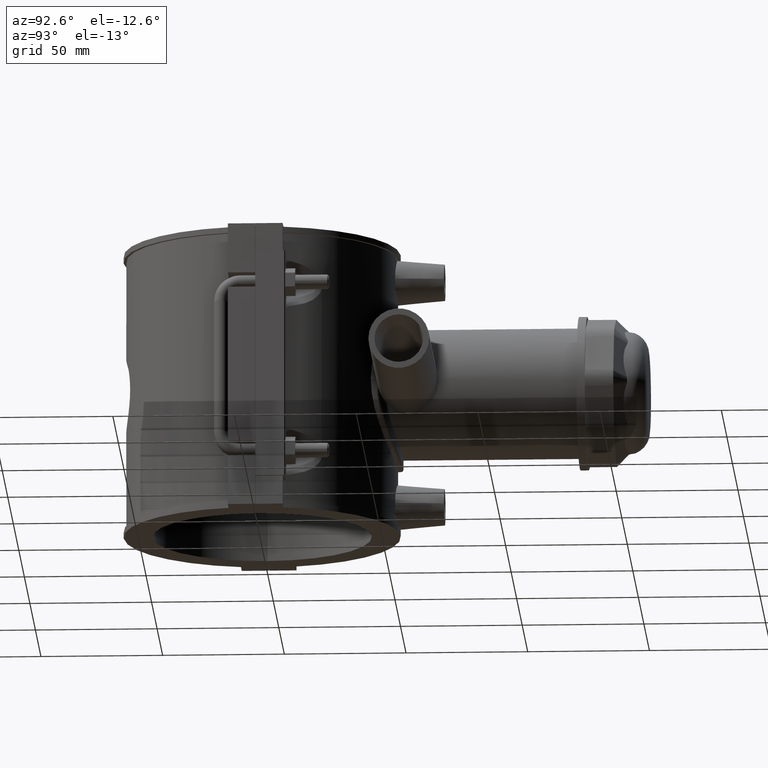
[diagram: clean part render]
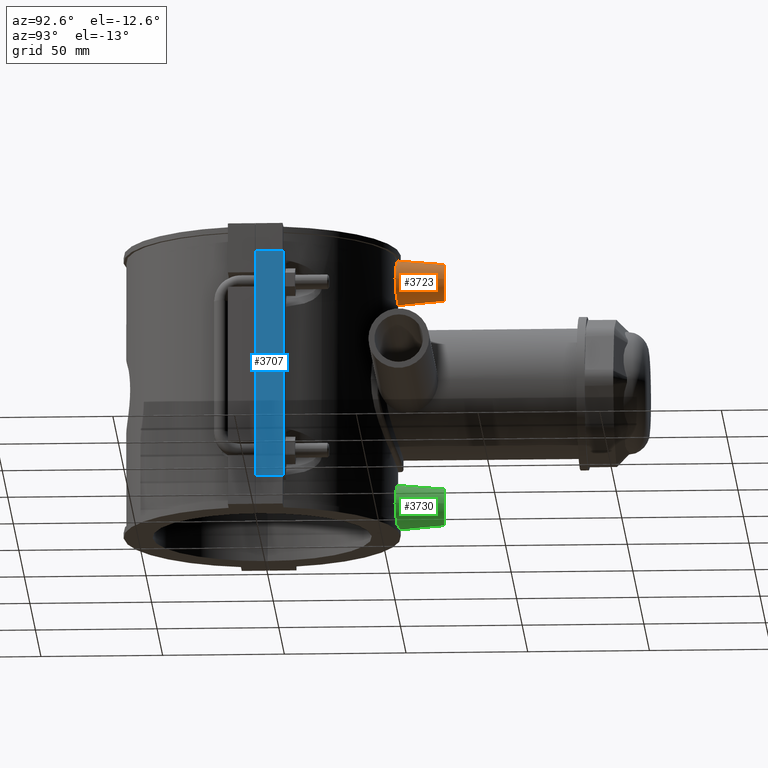
[diagram: same view with three faces highlighted in distinct colors, each labeled with its STEP entity id]
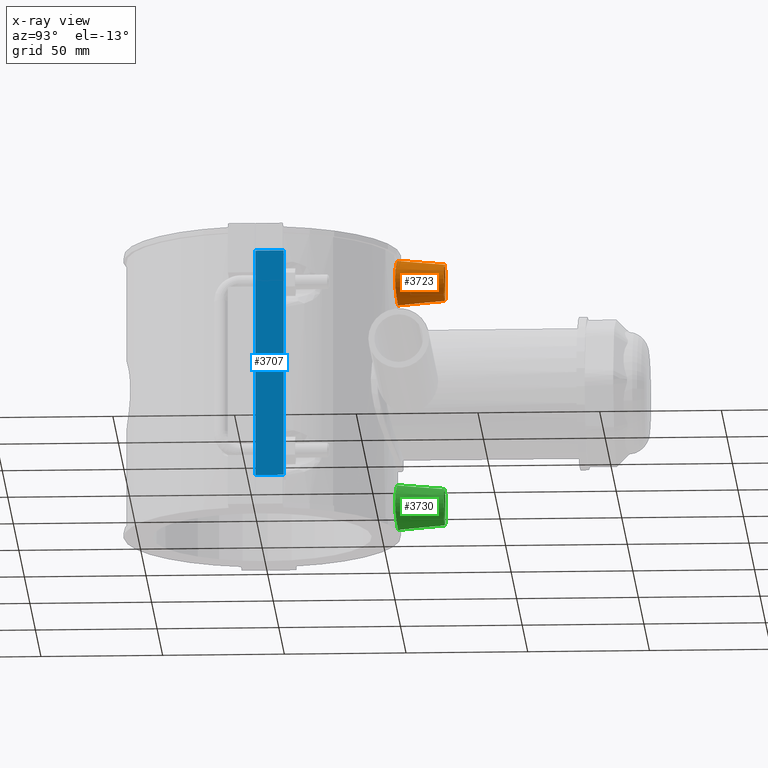
[diagram: x-ray of the same camera — body ghosted, the three highlighted faces saturated]
A machine part, auxiliary view with three faces highlighted in distinct colors.
The next image is the same camera in x-ray (body ghosted, the three faces saturated) — at least one of them is partly hidden behind the body in this view.
Their STEP definitions:

[orange] entity #3723 — the highlighted conical surface has half-angle 5 deg.
#651=CONICAL_SURFACE('',#3997,7.5,5.);
#850=CIRCLE('',#3998,7.5);
#929=FACE_BOUND('',#1326,.T.);
#1078=FACE_OUTER_BOUND('',#1325,.T.);
#1325=EDGE_LOOP('',(#3049));
#1326=EDGE_LOOP('',(#3050));
#1517=B_SPLINE_CURVE_WITH_KNOTS('',3,(#6684,#6685,#6686,#6687,#6688,#6689,
#6690,#6691,#6692,#6693,#6694,#6695,#6696,#6697,#6698,#6699,#6700,#6701,
#6702,#6703,#6704,#6705,#6706,#6707,#6708,#6709,#6710,#6711,#6712,#6713,
#6714,#6715,#6716,#6717),.UNSPECIFIED.,.T.,.F.,(4,2,2,2,2,2,2,2,2,2,2,2,
2,2,2,2,4),(0.,0.348056546561925,0.69611309312385,1.04356737342671,1.39102165372956,
1.73847593403242,2.08593021433528,2.4339867608972,2.78204330745913,3.13009985402105,
3.47815640058298,3.82561068088584,4.17306496118869,4.52051924149155,4.86797352179441,
5.21603006835633,5.56408661491826),.UNSPECIFIED.);
#1718=VERTEX_POINT('',#6683);
#1810=VERTEX_POINT('',#7371);
#2139=EDGE_CURVE('',#1718,#1718,#1517,.T.);
#2266=EDGE_CURVE('',#1810,#1810,#850,.T.);
#3049=ORIENTED_EDGE('',*,*,#2266,.F.);
#3050=ORIENTED_EDGE('',*,*,#2139,.F.);
#3723=ADVANCED_FACE('',(#1078,#929),#651,.T.);
#3997=AXIS2_PLACEMENT_3D('',#7370,#4690,#4691);
#3998=AXIS2_PLACEMENT_3D('',#7372,#4692,#4693);
#4690=DIRECTION('center_axis',(0.,-1.,0.));
#4691=DIRECTION('ref_axis',(1.,0.,0.));
#4692=DIRECTION('center_axis',(0.,1.,0.));
#4693=DIRECTION('ref_axis',(1.,0.,0.));
#6683=CARTESIAN_POINT('',(9.24728629540475,55.0284262556255,47.2));
#6684=CARTESIAN_POINT('Ctrl Pts',(-9.24728629540475,55.0284262556255,47.2));
#6685=CARTESIAN_POINT('Ctrl Pts',(-9.24728629540475,55.0284262556255,46.0398115114603));
#6686=CARTESIAN_POINT('Ctrl Pts',(-9.01214330687963,55.0695247712232,44.8048425692873));
#6687=CARTESIAN_POINT('Ctrl Pts',(-8.06162809036161,55.2166771321644,42.5386892230938));
#6688=CARTESIAN_POINT('Ctrl Pts',(-7.34642811830192,55.320480575323,41.5072870056913));
#6689=CARTESIAN_POINT('Ctrl Pts',(-5.70321706832009,55.5139308795857,39.8833192701881));
#6690=CARTESIAN_POINT('Ctrl Pts',(-4.66552947400089,55.616265751875,39.1809887441537));
#6691=CARTESIAN_POINT('Ctrl Pts',(-2.3930894121168,55.7602842908542,38.2493992541058));
#6692=CARTESIAN_POINT('Ctrl Pts',(-1.15818093434286,55.8,38.0202176603023));
#6693=CARTESIAN_POINT('Ctrl Pts',(1.15818093434286,55.8,38.0202176603023));
#6694=CARTESIAN_POINT('Ctrl Pts',(2.3930894121168,55.7602842908542,38.2493992541058));
#6695=CARTESIAN_POINT('Ctrl Pts',(4.66552947400089,55.616265751875,39.1809887441537));
#6696=CARTESIAN_POINT('Ctrl Pts',(5.70321706832009,55.5139308795857,39.8833192701881));
#6697=CARTESIAN_POINT('Ctrl Pts',(7.34642811830192,55.320480575323,41.5072870056913));
#6698=CARTESIAN_POINT('Ctrl Pts',(8.06162809036161,55.2166771321644,42.5386892230938));
#6699=CARTESIAN_POINT('Ctrl Pts',(9.01214330687963,55.0695247712232,44.8048425692873));
#6700=CARTESIAN_POINT('Ctrl Pts',(9.24728629540475,55.0284262556255,46.0398115114603));
#6701=CARTESIAN_POINT('Ctrl Pts',(9.24728629540475,55.0284262556255,48.3601884885398));
#6702=CARTESIAN_POINT('Ctrl Pts',(9.01214330687963,55.0695247712232,49.5951574307127));
#6703=CARTESIAN_POINT('Ctrl Pts',(8.06162809036161,55.2166771321644,51.8613107769063));
#6704=CARTESIAN_POINT('Ctrl Pts',(7.34642811830192,55.320480575323,52.8927129943087));
#6705=CARTESIAN_POINT('Ctrl Pts',(5.70321706832009,55.5139308795857,54.5166807298119));
#6706=CARTESIAN_POINT('Ctrl Pts',(4.66552947400089,55.616265751875,55.2190112558464));
#6707=CARTESIAN_POINT('Ctrl Pts',(2.39308941211679,55.7602842908542,56.1506007458942));
#6708=CARTESIAN_POINT('Ctrl Pts',(1.15818093434286,55.8,56.3797823396978));
#6709=CARTESIAN_POINT('Ctrl Pts',(-1.15818093434285,55.8,56.3797823396978));
#6710=CARTESIAN_POINT('Ctrl Pts',(-2.39308941211679,55.7602842908542,56.1506007458942));
#6711=CARTESIAN_POINT('Ctrl Pts',(-4.66552947400089,55.6162657518749,55.2190112558464));
#6712=CARTESIAN_POINT('Ctrl Pts',(-5.70321706832009,55.5139308795857,54.5166807298119));
#6713=CARTESIAN_POINT('Ctrl Pts',(-7.34642811830192,55.320480575323,52.8927129943087));
#6714=CARTESIAN_POINT('Ctrl Pts',(-8.06162809036161,55.2166771321644,51.8613107769063));
#6715=CARTESIAN_POINT('Ctrl Pts',(-9.01214330687963,55.0695247712232,49.5951574307127));
#6716=CARTESIAN_POINT('Ctrl Pts',(-9.24728629540475,55.0284262556255,48.3601884885398));
#6717=CARTESIAN_POINT('Ctrl Pts',(-9.24728629540475,55.0284262556255,47.2));
#7370=CARTESIAN_POINT('Origin',(0.,75.,47.2));
#7371=CARTESIAN_POINT('',(-7.5,75.,47.2));
#7372=CARTESIAN_POINT('Origin',(0.,75.,47.2));

[blue] entity #3707 — the highlighted planar face has unit normal (1, 0, 0).
#199=LINE('',#7158,#498);
#215=LINE('',#7229,#514);
#218=LINE('',#7235,#517);
#219=LINE('',#7236,#518);
#498=VECTOR('',#4600,94.4);
#514=VECTOR('',#4626,11.7000000000001);
#517=VECTOR('',#4631,11.7000000000001);
#518=VECTOR('',#4632,94.4);
#708=PLANE('',#3978);
#1062=FACE_OUTER_BOUND('',#1306,.T.);
#1306=EDGE_LOOP('',(#2991,#2992,#2993,#2994));
#1772=VERTEX_POINT('',#7155);
#1773=VERTEX_POINT('',#7157);
#1791=VERTEX_POINT('',#7228);
#1793=VERTEX_POINT('',#7234);
#2212=EDGE_CURVE('',#1772,#1773,#199,.T.);
#2235=EDGE_CURVE('',#1773,#1791,#215,.T.);
#2238=EDGE_CURVE('',#1793,#1772,#218,.T.);
#2239=EDGE_CURVE('',#1791,#1793,#219,.T.);
#2991=ORIENTED_EDGE('',*,*,#2212,.F.);
#2992=ORIENTED_EDGE('',*,*,#2238,.F.);
#2993=ORIENTED_EDGE('',*,*,#2239,.F.);
#2994=ORIENTED_EDGE('',*,*,#2235,.F.);
#3707=ADVANCED_FACE('',(#1062),#708,.T.);
#3978=AXIS2_PLACEMENT_3D('',#7233,#4629,#4630);
#4600=DIRECTION('',(0.,0.,-1.));
#4626=DIRECTION('',(0.,-1.,0.));
#4629=DIRECTION('center_axis',(1.,0.,0.));
#4630=DIRECTION('ref_axis',(0.,1.,0.));
#4631=DIRECTION('',(0.,1.,0.));
#4632=DIRECTION('',(0.,0.,1.));
#7155=CARTESIAN_POINT('',(64.,11.7500000000001,47.2));
#7157=CARTESIAN_POINT('',(64.,11.7500000000001,-47.2));
#7158=CARTESIAN_POINT('',(64.,11.7500000000001,0.));
#7228=CARTESIAN_POINT('',(64.,0.0500000000000078,-47.2));
#7229=CARTESIAN_POINT('',(64.,0.0500000000000078,-47.2));
#7233=CARTESIAN_POINT('Origin',(64.,0.0500000000000081,0.));
#7234=CARTESIAN_POINT('',(64.,0.0500000000000078,47.2));
#7235=CARTESIAN_POINT('',(64.,0.0500000000000078,47.2));
#7236=CARTESIAN_POINT('',(64.,0.0500000000000081,0.));

[green] entity #3730 — the highlighted conical surface has half-angle 5 deg.
#652=CONICAL_SURFACE('',#4010,7.5,5.);
#855=CIRCLE('',#4009,7.5);
#935=FACE_BOUND('',#1339,.T.);
#1085=FACE_OUTER_BOUND('',#1338,.T.);
#1338=EDGE_LOOP('',(#3062));
#1339=EDGE_LOOP('',(#3063));
#1516=B_SPLINE_CURVE_WITH_KNOTS('',3,(#6649,#6650,#6651,#6652,#6653,#6654,
#6655,#6656,#6657,#6658,#6659,#6660,#6661,#6662,#6663,#6664,#6665,#6666,
#6667,#6668,#6669,#6670,#6671,#6672,#6673,#6674,#6675,#6676,#6677,#6678,
#6679,#6680,#6681,#6682),.UNSPECIFIED.,.T.,.F.,(4,2,2,2,2,2,2,2,2,2,2,2,
2,2,2,2,4),(0.,0.348056546561925,0.69611309312385,1.04356737342671,1.39102165372956,
1.73847593403242,2.08593021433528,2.4339867608972,2.78204330745913,3.13009985402105,
3.47815640058298,3.82561068088584,4.17306496118869,4.52051924149155,4.86797352179441,
5.21603006835633,5.56408661491826),.UNSPECIFIED.);
#1717=VERTEX_POINT('',#6648);
#1815=VERTEX_POINT('',#7387);
#2138=EDGE_CURVE('',#1717,#1717,#1516,.T.);
#2271=EDGE_CURVE('',#1815,#1815,#855,.T.);
#3062=ORIENTED_EDGE('',*,*,#2271,.T.);
#3063=ORIENTED_EDGE('',*,*,#2138,.F.);
#3730=ADVANCED_FACE('',(#1085,#935),#652,.T.);
#4009=AXIS2_PLACEMENT_3D('',#7388,#4714,#4715);
#4010=AXIS2_PLACEMENT_3D('',#7389,#4716,#4717);
#4714=DIRECTION('center_axis',(0.,-1.,0.));
#4715=DIRECTION('ref_axis',(1.,0.,0.));
#4716=DIRECTION('center_axis',(0.,-1.,0.));
#4717=DIRECTION('ref_axis',(1.,0.,0.));
#6648=CARTESIAN_POINT('',(9.24728629540475,55.0284262556255,-47.2));
#6649=CARTESIAN_POINT('Ctrl Pts',(9.24728629540475,55.0284262556255,-47.2));
#6650=CARTESIAN_POINT('Ctrl Pts',(9.24728629540475,55.0284262556255,-46.0398115114603));
#6651=CARTESIAN_POINT('Ctrl Pts',(9.01214330687963,55.0695247712232,-44.8048425692873));
#6652=CARTESIAN_POINT('Ctrl Pts',(8.06162809036161,55.2166771321644,-42.5386892230938));
#6653=CARTESIAN_POINT('Ctrl Pts',(7.34642811830192,55.320480575323,-41.5072870056913));
#6654=CARTESIAN_POINT('Ctrl Pts',(5.70321706832009,55.5139308795857,-39.8833192701881));
#6655=CARTESIAN_POINT('Ctrl Pts',(4.66552947400089,55.616265751875,-39.1809887441537));
#6656=CARTESIAN_POINT('Ctrl Pts',(2.3930894121168,55.7602842908542,-38.2493992541058));
#6657=CARTESIAN_POINT('Ctrl Pts',(1.15818093434286,55.8,-38.0202176603023));
#6658=CARTESIAN_POINT('Ctrl Pts',(-1.15818093434286,55.8,-38.0202176603023));
#6659=CARTESIAN_POINT('Ctrl Pts',(-2.3930894121168,55.7602842908542,-38.2493992541058));
#6660=CARTESIAN_POINT('Ctrl Pts',(-4.66552947400089,55.6162657518749,-39.1809887441537));
#6661=CARTESIAN_POINT('Ctrl Pts',(-5.70321706832009,55.5139308795857,-39.8833192701881));
#6662=CARTESIAN_POINT('Ctrl Pts',(-7.34642811830192,55.320480575323,-41.5072870056913));
#6663=CARTESIAN_POINT('Ctrl Pts',(-8.06162809036161,55.2166771321644,-42.5386892230938));
#6664=CARTESIAN_POINT('Ctrl Pts',(-9.01214330687963,55.0695247712232,-44.8048425692873));
#6665=CARTESIAN_POINT('Ctrl Pts',(-9.24728629540475,55.0284262556255,-46.0398115114603));
#6666=CARTESIAN_POINT('Ctrl Pts',(-9.24728629540475,55.0284262556255,-48.3601884885398));
#6667=CARTESIAN_POINT('Ctrl Pts',(-9.01214330687963,55.0695247712232,-49.5951574307127));
#6668=CARTESIAN_POINT('Ctrl Pts',(-8.06162809036161,55.2166771321644,-51.8613107769063));
#6669=CARTESIAN_POINT('Ctrl Pts',(-7.34642811830192,55.320480575323,-52.8927129943087));
#6670=CARTESIAN_POINT('Ctrl Pts',(-5.70321706832009,55.5139308795857,-54.5166807298119));
#6671=CARTESIAN_POINT('Ctrl Pts',(-4.66552947400089,55.616265751875,-55.2190112558464));
#6672=CARTESIAN_POINT('Ctrl Pts',(-2.39308941211679,55.7602842908542,-56.1506007458942));
#6673=CARTESIAN_POINT('Ctrl Pts',(-1.15818093434286,55.8,-56.3797823396978));
#6674=CARTESIAN_POINT('Ctrl Pts',(1.15818093434285,55.8,-56.3797823396978));
#6675=CARTESIAN_POINT('Ctrl Pts',(2.39308941211678,55.7602842908542,-56.1506007458942));
#6676=CARTESIAN_POINT('Ctrl Pts',(4.66552947400088,55.6162657518749,-55.2190112558464));
#6677=CARTESIAN_POINT('Ctrl Pts',(5.70321706832009,55.5139308795857,-54.5166807298119));
#6678=CARTESIAN_POINT('Ctrl Pts',(7.34642811830192,55.320480575323,-52.8927129943087));
#6679=CARTESIAN_POINT('Ctrl Pts',(8.06162809036161,55.2166771321644,-51.8613107769063));
#6680=CARTESIAN_POINT('Ctrl Pts',(9.01214330687963,55.0695247712232,-49.5951574307127));
#6681=CARTESIAN_POINT('Ctrl Pts',(9.24728629540475,55.0284262556255,-48.3601884885398));
#6682=CARTESIAN_POINT('Ctrl Pts',(9.24728629540475,55.0284262556255,-47.2));
#7387=CARTESIAN_POINT('',(-7.5,75.,-47.2));
#7388=CARTESIAN_POINT('Origin',(0.,75.,-47.2));
#7389=CARTESIAN_POINT('Origin',(0.,75.,-47.2));